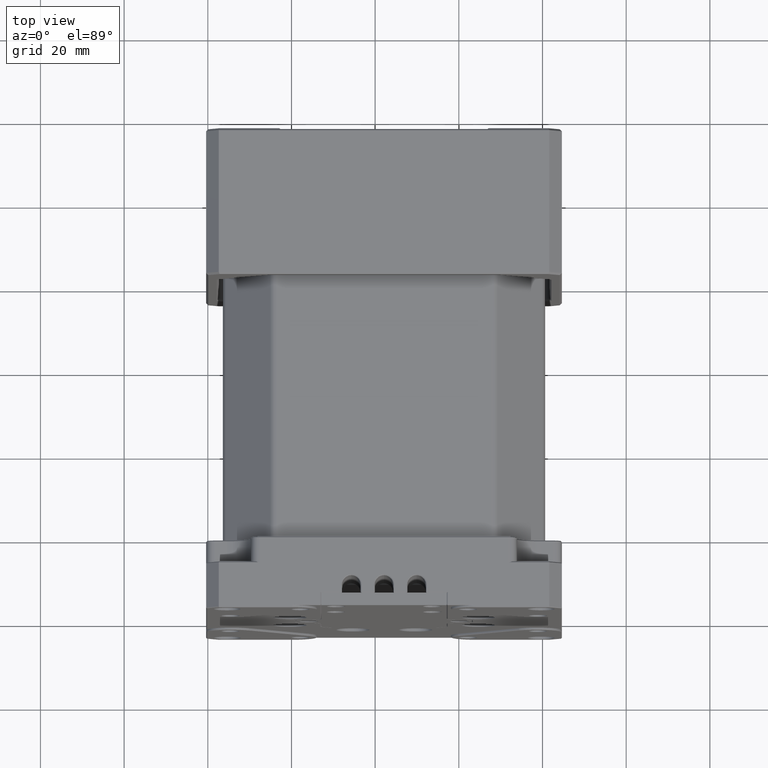
[diagram: clean part render]
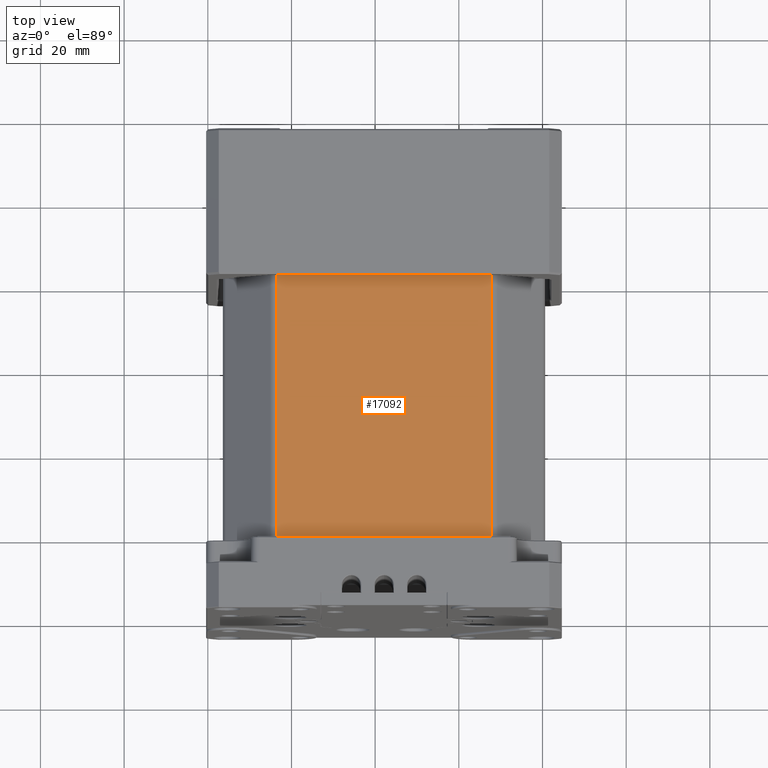
[diagram: same view with one face highlighted and labeled with its STEP entity id]
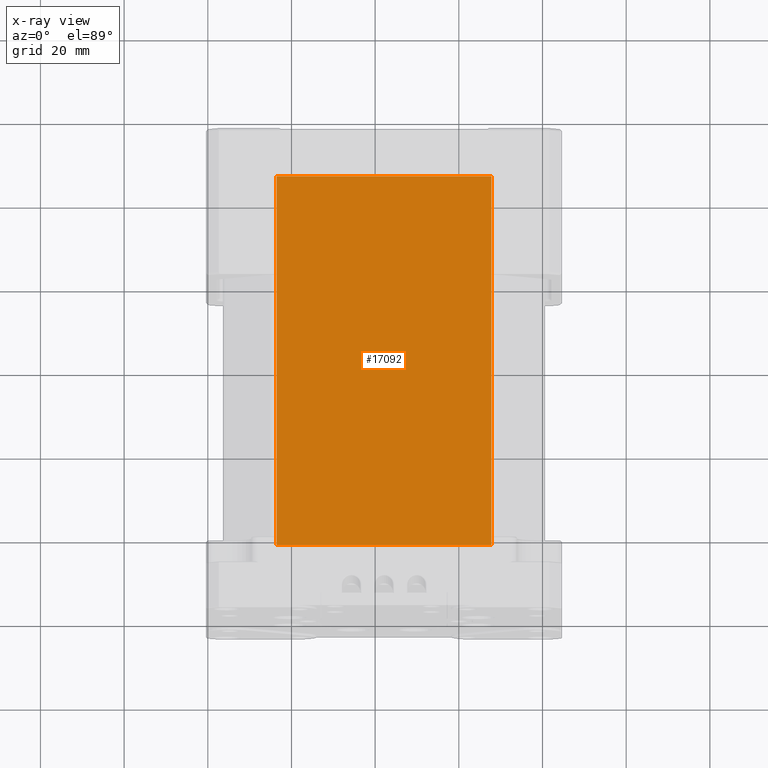
[diagram: x-ray of the same camera — body ghosted, the highlighted face saturated]
A machine part, top view. The second image highlights one B-rep face of the part: STEP entity #17092.
The next image is the same camera in x-ray: the body ghosted, the highlighted face saturated — about 0% of this face is hidden behind the body in this view.
In plain terms, the highlighted planar face has unit normal (0, -0.0746, -0.9972).
Its self-contained STEP definition (entity closure, byte-faithful):
#8731 = VECTOR ( 'NONE', #16666, 1000.000000000000114 ) ;
#9519 = DIRECTION ( 'NONE',  ( 0.000000000000000000, -0.9972141595530138458, 0.07459168845773737899 ) ) ;
#12939 = LINE ( 'NONE', #44859, #33799 ) ;
#14083 = LINE ( 'NONE', #35980, #41755 ) ;
#15225 = CARTESIAN_POINT ( 'NONE',  ( 127.7862130843626147, 66.36921659475248703, 15.30326077973855092 ) ) ;
#16666 = DIRECTION ( 'NONE',  ( -8.949057200030818454E-16, 0.9972141595530138458, -0.07459168845773737899 ) ) ;
#17092 = ADVANCED_FACE ( 'NONE', ( #42164 ), #36782, .F. ) ;
#25016 = ORIENTED_EDGE ( 'NONE', *, *, #36311, .T. ) ;
#26610 = VERTEX_POINT ( 'NONE', #69079 ) ;
#26995 = ORIENTED_EDGE ( 'NONE', *, *, #43817, .T. ) ;
#31372 = DIRECTION ( 'NONE',  ( 8.949057200030818454E-16, -0.9972141595530138458, 0.07459168845773737899 ) ) ;
#33799 = VECTOR ( 'NONE', #66108, 1000.000000000000000 ) ;
#33964 = CARTESIAN_POINT ( 'NONE',  ( 76.44306733385509744, -22.18340077355515305, 21.92700271478560126 ) ) ;
#35980 = CARTESIAN_POINT ( 'NONE',  ( 128.6146402091089840, 66.16977376284189916, 15.31817911743010008 ) ) ;
#36117 = VERTEX_POINT ( 'NONE', #33964 ) ;
#36311 = EDGE_CURVE ( 'NONE', #50246, #36117, #64400, .T. ) ;
#36782 = PLANE ( 'NONE',  #38504 ) ;
#38504 = AXIS2_PLACEMENT_3D ( 'NONE', #58678, #48241, #9519 ) ;
#41755 = VECTOR ( 'NONE', #57865, 1000.000000000000000 ) ;
#42164 = FACE_OUTER_BOUND ( 'NONE', #68128, .T. ) ;
#42483 = LINE ( 'NONE', #15225, #8731 ) ;
#43817 = EDGE_CURVE ( 'NONE', #26610, #50246, #14083, .T. ) ;
#44005 = EDGE_CURVE ( 'NONE', #36117, #67720, #12939, .T. ) ;
#44859 = CARTESIAN_POINT ( 'NONE',  ( 127.7862130843627995, -22.18340077355509976, 21.92700271478560126 ) ) ;
#48241 = DIRECTION ( 'NONE',  ( 2.339376954533594784E-16, -0.07459168845773739287, -0.9972141595530139568 ) ) ;
#48789 = ORIENTED_EDGE ( 'NONE', *, *, #44005, .T. ) ;
#48916 = CARTESIAN_POINT ( 'NONE',  ( 76.44306733385499797, 66.36921659475248703, 15.30326077973849941 ) ) ;
#50246 = VERTEX_POINT ( 'NONE', #67206 ) ;
#54838 = EDGE_CURVE ( 'NONE', #67720, #26610, #42483, .T. ) ;
#55125 = CARTESIAN_POINT ( 'NONE',  ( 127.7862130843627995, -22.18340077355509976, 21.92700271478560126 ) ) ;
#56698 = VECTOR ( 'NONE', #31372, 1000.000000000000114 ) ;
#57865 = DIRECTION ( 'NONE',  ( -1.000000000000000000, -9.098624631498361099E-16, -1.665334536937734811E-16 ) ) ;
#58678 = CARTESIAN_POINT ( 'NONE',  ( 128.6146402091089840, 66.36921659475248703, 15.30326077973855092 ) ) ;
#64400 = LINE ( 'NONE', #48916, #56698 ) ;
#66108 = DIRECTION ( 'NONE',  ( 1.000000000000000000, 9.098624631498361099E-16, 1.665334536937734811E-16 ) ) ;
#67206 = CARTESIAN_POINT ( 'NONE',  ( 76.44306733385499797, 66.16977376284189916, 15.31817911743005034 ) ) ;
#67720 = VERTEX_POINT ( 'NONE', #55125 ) ;
#68128 = EDGE_LOOP ( 'NONE', ( #70840, #26995, #25016, #48789 ) ) ;
#69079 = CARTESIAN_POINT ( 'NONE',  ( 127.7862130843626147, 66.16977376284189916, 15.31817911743010008 ) ) ;
#70840 = ORIENTED_EDGE ( 'NONE', *, *, #54838, .T. ) ;